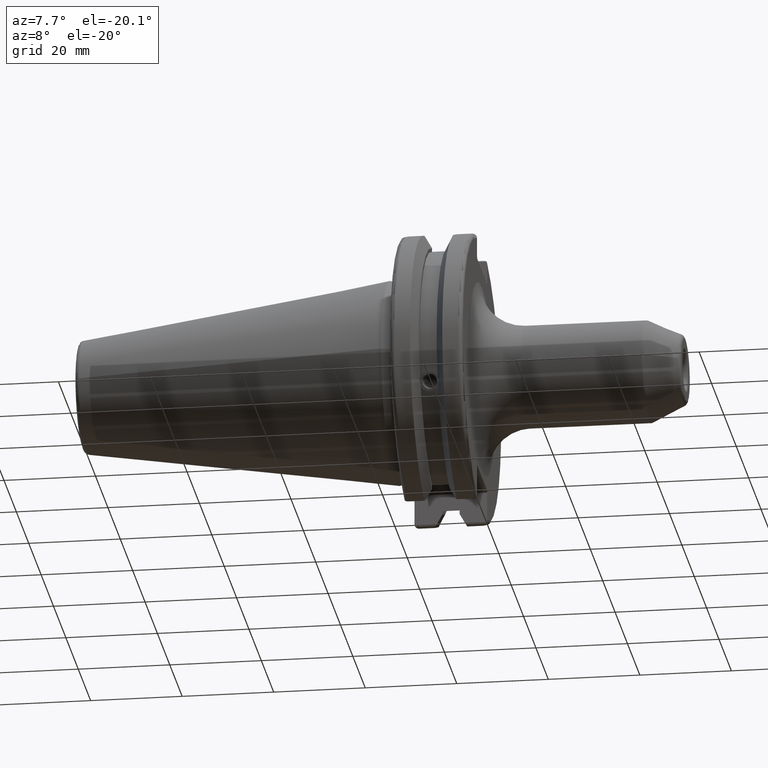
[diagram: clean part render]
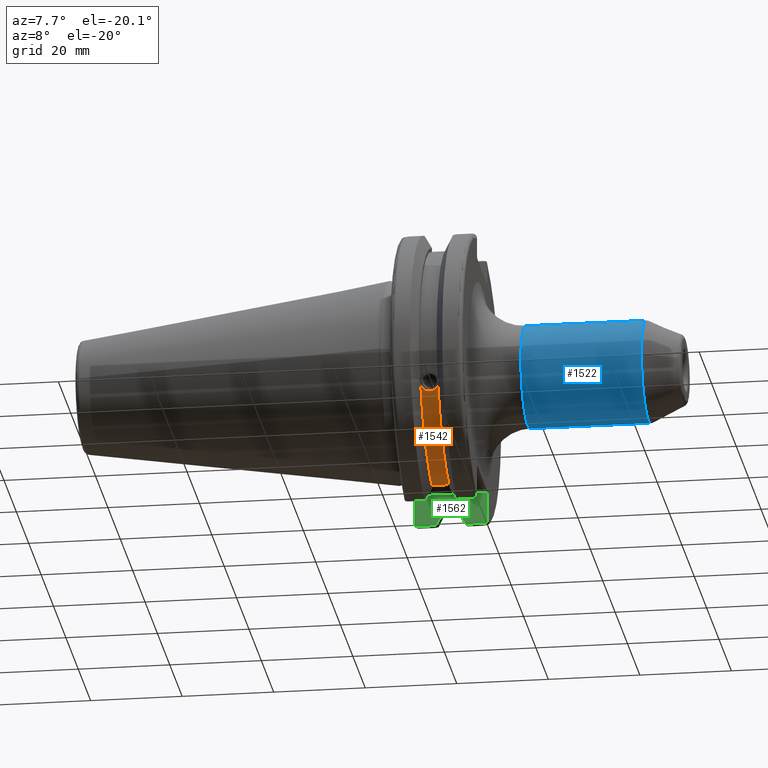
[diagram: same view with three faces highlighted in distinct colors, each labeled with its STEP entity id]
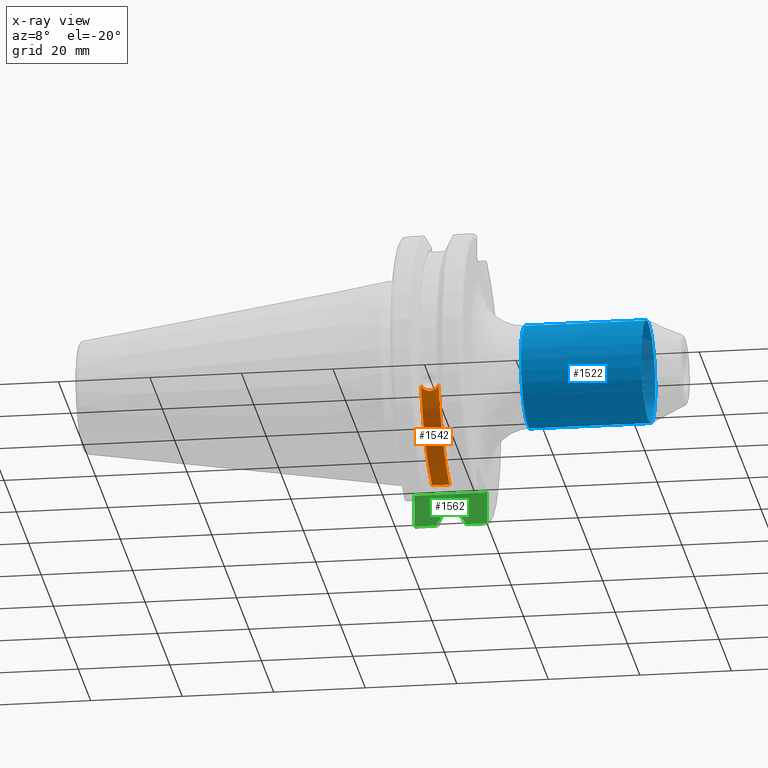
[diagram: x-ray of the same camera — body ghosted, the three highlighted faces saturated]
A machine part, auxiliary view with three faces highlighted in distinct colors.
The next image is the same camera in x-ray (body ghosted, the three faces saturated) — at least one of them is partly hidden behind the body in this view.
Their STEP definitions:

[orange] entity #1542 — the highlighted cylindrical surface (partial cylindrical patch) has radius 28.15 mm, axis along (1, 0, 0).
#74=B_SPLINE_CURVE_WITH_KNOTS('',3,(#2594,#2595,#2596,#2597,#2598,#2599,
#2600,#2601,#2602,#2603,#2604,#2605,#2606,#2607,#2608),.UNSPECIFIED.,.F.,
 .F.,(4,2,2,3,2,2,4),(-0.231446873660085,-0.158271583089134,-0.0791357915445672,
0.,0.0791357915445671,0.158271583089134,0.231446873660466),
 .UNSPECIFIED.);
#128=LINE('',#2666,#222);
#222=VECTOR('',#1985,10.);
#296=CYLINDRICAL_SURFACE('',#1696,28.15);
#390=FACE_OUTER_BOUND('',#485,.T.);
#485=EDGE_LOOP('',(#1182,#1183,#1184,#1185));
#588=CIRCLE('',#1695,28.15);
#589=CIRCLE('',#1697,28.15);
#685=VERTEX_POINT('',#2591);
#686=VERTEX_POINT('',#2593);
#699=VERTEX_POINT('',#2660);
#700=VERTEX_POINT('',#2664);
#861=EDGE_CURVE('',#686,#685,#74,.T.);
#879=EDGE_CURVE('',#686,#699,#588,.T.);
#881=EDGE_CURVE('',#685,#700,#589,.T.);
#882=EDGE_CURVE('',#700,#699,#128,.T.);
#1182=ORIENTED_EDGE('',*,*,#861,.T.);
#1183=ORIENTED_EDGE('',*,*,#881,.T.);
#1184=ORIENTED_EDGE('',*,*,#882,.T.);
#1185=ORIENTED_EDGE('',*,*,#879,.F.);
#1542=ADVANCED_FACE('',(#390),#296,.T.);
#1695=AXIS2_PLACEMENT_3D('',#2661,#1978,#1979);
#1696=AXIS2_PLACEMENT_3D('',#2663,#1981,#1982);
#1697=AXIS2_PLACEMENT_3D('',#2665,#1983,#1984);
#1978=DIRECTION('center_axis',(1.,0.,0.));
#1979=DIRECTION('ref_axis',(0.,0.,-1.));
#1981=DIRECTION('center_axis',(1.,0.,0.));
#1982=DIRECTION('ref_axis',(0.,1.,0.));
#1983=DIRECTION('center_axis',(1.,0.,0.));
#1984=DIRECTION('ref_axis',(0.,0.,-1.));
#1985=DIRECTION('',(1.,0.,0.));
#2591=CARTESIAN_POINT('',(9.2191,-26.1451788594704,-10.4332220529567));
#2593=CARTESIAN_POINT('',(13.0491,-26.1451788594704,-10.4332220529567));
#2594=CARTESIAN_POINT('Ctrl Pts',(13.0491,-26.1451788594704,-10.4332220529567));
#2595=CARTESIAN_POINT('Ctrl Pts',(12.9428694290343,-26.0576536126147,-10.6525563316815));
#2596=CARTESIAN_POINT('Ctrl Pts',(12.791379862294,-25.9751489313128,-10.8509873904882));
#2597=CARTESIAN_POINT('Ctrl Pts',(12.4326293734259,-25.8346412777187,-11.1816210830117));
#2598=CARTESIAN_POINT('Ctrl Pts',(12.1965549887012,-25.7695111693635,-11.3298867884858));
#2599=CARTESIAN_POINT('Ctrl Pts',(11.6791874573612,-25.6822868299377,-11.5262389251846));
#2600=CARTESIAN_POINT('Ctrl Pts',(11.3978859718152,-25.6603958057616,-11.5743935949859));
#2601=CARTESIAN_POINT('Ctrl Pts',(11.1341,-25.6603958057616,-11.5743935949859));
#2602=CARTESIAN_POINT('Ctrl Pts',(10.8703140281848,-25.6603958057616,-11.5743935949859));
#2603=CARTESIAN_POINT('Ctrl Pts',(10.5890125426388,-25.6822868299377,-11.5262389251846));
#2604=CARTESIAN_POINT('Ctrl Pts',(10.0716450112988,-25.7695111693635,-11.3298867884858));
#2605=CARTESIAN_POINT('Ctrl Pts',(9.83557062657411,-25.8346412777187,-11.1816210830117));
#2606=CARTESIAN_POINT('Ctrl Pts',(9.4768201377051,-25.9751489313131,-10.8509873904873));
#2607=CARTESIAN_POINT('Ctrl Pts',(9.32533057097183,-26.0576536126096,-10.6525563316942));
#2608=CARTESIAN_POINT('Ctrl Pts',(9.2191,-26.1451788594704,-10.4332220529567));
#2660=CARTESIAN_POINT('',(13.0491,-8.19,-26.932255754021));
#2661=CARTESIAN_POINT('Origin',(13.0491,0.,0.));
#2663=CARTESIAN_POINT('Origin',(11.1341,0.,0.));
#2664=CARTESIAN_POINT('',(9.2191,-8.19,-26.932255754021));
#2665=CARTESIAN_POINT('Origin',(9.2191,0.,0.));
#2666=CARTESIAN_POINT('',(11.1341,-8.19,-26.932255754021));

[blue] entity #1522 — the highlighted cylindrical surface (bore or boss wall) has radius 11.176 mm, axis along (1, 0, 0).
#65=B_SPLINE_CURVE_WITH_KNOTS('',3,(#2358,#2359,#2360,#2361,#2362,#2363,
#2364,#2365,#2366,#2367,#2368,#2369,#2370,#2371,#2372,#2373,#2374,#2375),
 .UNSPECIFIED.,.F.,.F.,(4,2,2,2,2,2,2,2,4),(0.656522759037643,0.824173855025994,
0.991824951014346,1.15243523454482,1.31304551807529,1.47365580160576,1.63426608513623,
1.80191718112458,1.96956827711293),.UNSPECIFIED.);
#66=B_SPLINE_CURVE_WITH_KNOTS('',3,(#2376,#2377,#2378,#2379,#2380,#2381,
#2382,#2383,#2384,#2385,#2386,#2387,#2388,#2389,#2390,#2391,#2392,#2393,
#2394),.UNSPECIFIED.,.F.,.F.,(4,2,2,2,3,2,2,2,4),(1.96956827711293,2.13721937310128,
2.30487046908963,2.4654807526201,2.62609103615057,2.78670131968104,2.94731160321151,
3.11496269919986,3.28261379518822),.UNSPECIFIED.);
#99=LINE('',#2352,#193);
#193=VECTOR('',#1856,11.176);
#286=CYLINDRICAL_SURFACE('',#1647,11.176);
#315=FACE_BOUND('',#460,.T.);
#370=FACE_OUTER_BOUND('',#459,.T.);
#459=EDGE_LOOP('',(#1060,#1061,#1062,#1063,#1064,#1065));
#460=EDGE_LOOP('',(#1066,#1067));
#567=CIRCLE('',#1645,11.176);
#568=CIRCLE('',#1646,11.176);
#569=CIRCLE('',#1648,11.176);
#570=CIRCLE('',#1649,11.176);
#643=VERTEX_POINT('',#2345);
#644=VERTEX_POINT('',#2347);
#645=VERTEX_POINT('',#2351);
#646=VERTEX_POINT('',#2353);
#647=VERTEX_POINT('',#2356);
#648=VERTEX_POINT('',#2357);
#806=EDGE_CURVE('',#643,#644,#567,.T.);
#807=EDGE_CURVE('',#644,#643,#568,.T.);
#808=EDGE_CURVE('',#644,#645,#99,.T.);
#809=EDGE_CURVE('',#646,#645,#569,.T.);
#810=EDGE_CURVE('',#645,#646,#570,.T.);
#811=EDGE_CURVE('',#647,#648,#65,.T.);
#812=EDGE_CURVE('',#648,#647,#66,.T.);
#1060=ORIENTED_EDGE('',*,*,#807,.F.);
#1061=ORIENTED_EDGE('',*,*,#808,.T.);
#1062=ORIENTED_EDGE('',*,*,#809,.F.);
#1063=ORIENTED_EDGE('',*,*,#810,.F.);
#1064=ORIENTED_EDGE('',*,*,#808,.F.);
#1065=ORIENTED_EDGE('',*,*,#806,.F.);
#1066=ORIENTED_EDGE('',*,*,#811,.T.);
#1067=ORIENTED_EDGE('',*,*,#812,.T.);
#1522=ADVANCED_FACE('',(#370,#315),#286,.T.);
#1645=AXIS2_PLACEMENT_3D('',#2348,#1850,#1851);
#1646=AXIS2_PLACEMENT_3D('',#2349,#1852,#1853);
#1647=AXIS2_PLACEMENT_3D('',#2350,#1854,#1855);
#1648=AXIS2_PLACEMENT_3D('',#2354,#1857,#1858);
#1649=AXIS2_PLACEMENT_3D('',#2355,#1859,#1860);
#1850=DIRECTION('center_axis',(1.,0.,0.));
#1851=DIRECTION('ref_axis',(0.,-1.,1.83697019872103E-16));
#1852=DIRECTION('center_axis',(1.,0.,0.));
#1853=DIRECTION('ref_axis',(0.,-1.,1.83697019872103E-16));
#1854=DIRECTION('center_axis',(1.,0.,0.));
#1855=DIRECTION('ref_axis',(0.,1.,0.));
#1856=DIRECTION('',(-1.,0.,0.));
#1857=DIRECTION('center_axis',(-1.,0.,0.));
#1858=DIRECTION('ref_axis',(0.,-1.,-1.22464679914735E-16));
#1859=DIRECTION('center_axis',(-1.,0.,0.));
#1860=DIRECTION('ref_axis',(0.,-1.,-1.22464679914735E-16));
#2345=CARTESIAN_POINT('',(55.3950978975639,-1.36866526272708E-15,11.176));
#2347=CARTESIAN_POINT('',(55.3950978975639,-11.176,-1.36866526272708E-15));
#2348=CARTESIAN_POINT('Origin',(55.3950978975639,0.,0.));
#2349=CARTESIAN_POINT('Origin',(55.3950978975639,0.,0.));
#2350=CARTESIAN_POINT('Origin',(37.3333962801034,0.,0.));
#2351=CARTESIAN_POINT('',(29.05,-11.176,-1.36866526272708E-15));
#2352=CARTESIAN_POINT('',(37.3333962801034,-11.176,-1.36866526272708E-15));
#2353=CARTESIAN_POINT('',(29.05,-1.36866526272708E-15,-11.176));
#2354=CARTESIAN_POINT('Origin',(29.05,0.,0.));
#2355=CARTESIAN_POINT('Origin',(29.05,0.,0.));
#2356=CARTESIAN_POINT('',(52.175,11.176,0.));
#2357=CARTESIAN_POINT('',(42.825,11.176,0.));
#2358=CARTESIAN_POINT('Ctrl Pts',(52.175,11.176,-5.55111512312578E-16));
#2359=CARTESIAN_POINT('Ctrl Pts',(52.175,11.176,0.558836986627837));
#2360=CARTESIAN_POINT('Ctrl Pts',(52.024690215704,11.1301749495032,1.13427339393077));
#2361=CARTESIAN_POINT('Ctrl Pts',(51.4691002398714,10.9790020469182,2.15148322227343));
#2362=CARTESIAN_POINT('Ctrl Pts',(51.0649184765754,10.8762679996926,2.59424283061505));
#2363=CARTESIAN_POINT('Ctrl Pts',(50.2070240971641,10.6982660287269,3.24969399985498));
#2364=CARTESIAN_POINT('Ctrl Pts',(49.6975453073145,10.6096289676855,3.51758919340348));
#2365=CARTESIAN_POINT('Ctrl Pts',(48.6118232448661,10.486538421115,3.86913034261304));
#2366=CARTESIAN_POINT('Ctrl Pts',(48.0353676117682,10.4536755323607,3.95267553236071));
#2367=CARTESIAN_POINT('Ctrl Pts',(46.9646323882318,10.4536755323607,3.95267553236071));
#2368=CARTESIAN_POINT('Ctrl Pts',(46.3881767551338,10.486538421115,3.86913034261304));
#2369=CARTESIAN_POINT('Ctrl Pts',(45.3024546926855,10.6096289676855,3.51758919340347));
#2370=CARTESIAN_POINT('Ctrl Pts',(44.7929759028359,10.6982660287269,3.24969399985498));
#2371=CARTESIAN_POINT('Ctrl Pts',(43.9350815234246,10.8762679996926,2.59424283061505));
#2372=CARTESIAN_POINT('Ctrl Pts',(43.5308997601286,10.9790020469182,2.15148322227344));
#2373=CARTESIAN_POINT('Ctrl Pts',(42.975309784296,11.1301749495032,1.13427339393077));
#2374=CARTESIAN_POINT('Ctrl Pts',(42.825,11.176,0.55883698662784));
#2375=CARTESIAN_POINT('Ctrl Pts',(42.825,11.176,2.4980018054066E-15));
#2376=CARTESIAN_POINT('Ctrl Pts',(42.825,11.176,6.24500451351651E-16));
#2377=CARTESIAN_POINT('Ctrl Pts',(42.825,11.176,-0.558836986627835));
#2378=CARTESIAN_POINT('Ctrl Pts',(42.975309784296,11.1301749495032,-1.13427339393076));
#2379=CARTESIAN_POINT('Ctrl Pts',(43.5308997601286,10.9790020469182,-2.15148322227343));
#2380=CARTESIAN_POINT('Ctrl Pts',(43.9350815234246,10.8762679996926,-2.59424283061505));
#2381=CARTESIAN_POINT('Ctrl Pts',(44.7929759028359,10.6982660287269,-3.24969399985498));
#2382=CARTESIAN_POINT('Ctrl Pts',(45.3024546926855,10.6096289676855,-3.51758919340347));
#2383=CARTESIAN_POINT('Ctrl Pts',(46.3881767551339,10.486538421115,-3.86913034261304));
#2384=CARTESIAN_POINT('Ctrl Pts',(46.9646323882318,10.4536755323607,-3.95267553236071));
#2385=CARTESIAN_POINT('Ctrl Pts',(47.5,10.4536755323607,-3.95267553236071));
#2386=CARTESIAN_POINT('Ctrl Pts',(48.0353676117682,10.4536755323607,-3.95267553236071));
#2387=CARTESIAN_POINT('Ctrl Pts',(48.6118232448661,10.486538421115,-3.86913034261304));
#2388=CARTESIAN_POINT('Ctrl Pts',(49.6975453073145,10.6096289676855,-3.51758919340348));
#2389=CARTESIAN_POINT('Ctrl Pts',(50.2070240971641,10.6982660287269,-3.24969399985498));
#2390=CARTESIAN_POINT('Ctrl Pts',(51.0649184765754,10.8762679996926,-2.59424283061505));
#2391=CARTESIAN_POINT('Ctrl Pts',(51.4691002398714,10.9790020469182,-2.15148322227344));
#2392=CARTESIAN_POINT('Ctrl Pts',(52.024690215704,11.1301749495032,-1.13427339393077));
#2393=CARTESIAN_POINT('Ctrl Pts',(52.175,11.176,-0.558836986627837));
#2394=CARTESIAN_POINT('Ctrl Pts',(52.175,11.176,5.55111512312578E-16));

[green] entity #1562 — the highlighted planar face has unit normal (-0, 1, 0).
#19=(
BOUNDED_CURVE()
B_SPLINE_CURVE(2,(#2776,#2777,#2778),.UNSPECIFIED.,.F.,.F.)
B_SPLINE_CURVE_WITH_KNOTS((3,3),(0.,0.276549142796136),.UNSPECIFIED.)
CURVE()
GEOMETRIC_REPRESENTATION_ITEM()
RATIONAL_B_SPLINE_CURVE((1.,1.00095203903316,1.00031614444813))
REPRESENTATION_ITEM('')
);
#24=(
BOUNDED_CURVE()
B_SPLINE_CURVE(2,(#2909,#2910,#2911),.UNSPECIFIED.,.F.,.F.)
B_SPLINE_CURVE_WITH_KNOTS((3,3),(0.0550586467393769,0.331607789535852),
 .UNSPECIFIED.)
CURVE()
GEOMETRIC_REPRESENTATION_ITEM()
RATIONAL_B_SPLINE_CURVE((1.00031614444922,1.00095203903643,1.))
REPRESENTATION_ITEM('')
);
#82=B_SPLINE_CURVE_WITH_KNOTS('',3,(#2866,#2867,#2868,#2869,#2870,#2871),
 .UNSPECIFIED.,.F.,.F.,(4,2,4),(0.452741154494497,0.491581665024871,0.505824174364157),
 .UNSPECIFIED.);
#85=B_SPLINE_CURVE_WITH_KNOTS('',3,(#2902,#2903,#2904,#2905,#2906,#2907),
 .UNSPECIFIED.,.F.,.F.,(4,2,4),(0.0977210450333169,0.111963554372601,0.150804064902975),
 .UNSPECIFIED.);
#109=LINE('',#2423,#203);
#138=LINE('',#2797,#232);
#139=LINE('',#2801,#233);
#140=LINE('',#2805,#234);
#149=LINE('',#2845,#243);
#155=LINE('',#2893,#249);
#157=LINE('',#2900,#251);
#158=LINE('',#2908,#252);
#203=VECTOR('',#1882,10.);
#232=VECTOR('',#2043,10.);
#233=VECTOR('',#2048,10.);
#234=VECTOR('',#2053,10.);
#243=VECTOR('',#2092,10.);
#249=VECTOR('',#2108,10.);
#251=VECTOR('',#2112,10.);
#252=VECTOR('',#2113,10.);
#341=PLANE('',#1746);
#410=FACE_OUTER_BOUND('',#510,.T.);
#510=EDGE_LOOP('',(#1297,#1298,#1299,#1300,#1301,#1302,#1303,#1304,#1305,
#1306,#1307,#1308));
#651=VERTEX_POINT('',#2401);
#661=VERTEX_POINT('',#2421);
#720=VERTEX_POINT('',#2773);
#721=VERTEX_POINT('',#2775);
#726=VERTEX_POINT('',#2795);
#727=VERTEX_POINT('',#2799);
#728=VERTEX_POINT('',#2803);
#743=VERTEX_POINT('',#2842);
#744=VERTEX_POINT('',#2844);
#750=VERTEX_POINT('',#2865);
#753=VERTEX_POINT('',#2892);
#755=VERTEX_POINT('',#2901);
#826=EDGE_CURVE('',#661,#651,#109,.T.);
#910=EDGE_CURVE('',#720,#721,#19,.T.);
#917=EDGE_CURVE('',#726,#720,#138,.T.);
#919=EDGE_CURVE('',#727,#726,#139,.T.);
#921=EDGE_CURVE('',#728,#727,#140,.T.);
#939=EDGE_CURVE('',#743,#744,#149,.T.);
#947=EDGE_CURVE('',#651,#750,#82,.T.);
#951=EDGE_CURVE('',#750,#753,#155,.T.);
#954=EDGE_CURVE('',#744,#661,#157,.T.);
#955=EDGE_CURVE('',#755,#743,#85,.T.);
#956=EDGE_CURVE('',#721,#755,#158,.T.);
#957=EDGE_CURVE('',#753,#728,#24,.T.);
#1297=ORIENTED_EDGE('',*,*,#947,.F.);
#1298=ORIENTED_EDGE('',*,*,#826,.F.);
#1299=ORIENTED_EDGE('',*,*,#954,.F.);
#1300=ORIENTED_EDGE('',*,*,#939,.F.);
#1301=ORIENTED_EDGE('',*,*,#955,.F.);
#1302=ORIENTED_EDGE('',*,*,#956,.F.);
#1303=ORIENTED_EDGE('',*,*,#910,.F.);
#1304=ORIENTED_EDGE('',*,*,#917,.F.);
#1305=ORIENTED_EDGE('',*,*,#919,.F.);
#1306=ORIENTED_EDGE('',*,*,#921,.F.);
#1307=ORIENTED_EDGE('',*,*,#957,.F.);
#1308=ORIENTED_EDGE('',*,*,#951,.F.);
#1562=ADVANCED_FACE('',(#410),#341,.F.);
#1746=AXIS2_PLACEMENT_3D('',#2899,#2110,#2111);
#1882=DIRECTION('',(0.,0.,-1.));
#2043=DIRECTION('',(0.,0.,-1.));
#2048=DIRECTION('',(-1.,0.,0.));
#2053=DIRECTION('',(0.,0.,1.));
#2092=DIRECTION('',(0.,0.,1.));
#2108=DIRECTION('',(-1.,-1.31581988103722E-16,0.));
#2110=DIRECTION('center_axis',(-1.31581988103722E-16,1.,0.));
#2111=DIRECTION('ref_axis',(1.,1.31581988103722E-16,0.));
#2112=DIRECTION('',(1.,1.31581988103722E-16,0.));
#2113=DIRECTION('',(-1.,-1.31581988103722E-16,0.));
#2401=CARTESIAN_POINT('',(19.05,8.19,-29.6392712461019));
#2421=CARTESIAN_POINT('',(19.05,8.19,-23.1));
#2423=CARTESIAN_POINT('',(19.05,8.19,-11.3));
#2773=CARTESIAN_POINT('',(9.2191,8.19,-27.7771386827498));
#2775=CARTESIAN_POINT('',(7.88668530351257,8.19,-30.1755016258903));
#2776=CARTESIAN_POINT('Ctrl Pts',(9.2191,8.19,-27.7771386827498));
#2777=CARTESIAN_POINT('Ctrl Pts',(8.58046356152393,8.19,-28.9303689539705));
#2778=CARTESIAN_POINT('Ctrl Pts',(7.88668530351257,8.19,-30.1755016258903));
#2795=CARTESIAN_POINT('',(9.2191,8.19,-26.932255754021));
#2797=CARTESIAN_POINT('',(9.2191,8.18999999999999,-11.3));
#2799=CARTESIAN_POINT('',(13.0491,8.19,-26.932255754021));
#2801=CARTESIAN_POINT('',(11.1341,8.19,-26.932255754021));
#2803=CARTESIAN_POINT('',(13.0491,8.19,-27.7771386827498));
#2805=CARTESIAN_POINT('',(13.0491,8.19,-11.3));
#2842=CARTESIAN_POINT('',(3.175,8.18999999999999,-29.6392712461019));
#2844=CARTESIAN_POINT('',(3.175,8.18999999999999,-23.1));
#2845=CARTESIAN_POINT('',(3.175,8.18999999999999,-11.3));
#2865=CARTESIAN_POINT('',(18.9058722749097,8.19,-30.1755016258903));
#2866=CARTESIAN_POINT('Ctrl Pts',(19.05,8.19,-29.6392712461019));
#2867=CARTESIAN_POINT('Ctrl Pts',(19.05,8.19,-29.7687396145364));
#2868=CARTESIAN_POINT('Ctrl Pts',(19.0204855670831,8.19,-29.9212724384851));
#2869=CARTESIAN_POINT('Ctrl Pts',(18.9539643471756,8.19,-30.0852355256475));
#2870=CARTESIAN_POINT('Ctrl Pts',(18.9318163728133,8.19,-30.131014531546));
#2871=CARTESIAN_POINT('Ctrl Pts',(18.9058722749097,8.19,-30.1755016258903));
#2892=CARTESIAN_POINT('',(14.3815146964874,8.19,-30.1755016258903));
#2893=CARTESIAN_POINT('',(16.8551333845378,8.19,-30.1755016258903));
#2899=CARTESIAN_POINT('Origin',(3.175,8.19,-22.6));
#2900=CARTESIAN_POINT('',(9.44125,8.19,-23.1));
#2901=CARTESIAN_POINT('',(3.31912772509028,8.19,-30.1755016258903));
#2902=CARTESIAN_POINT('Ctrl Pts',(3.31912772509028,8.19,-30.1755016258903));
#2903=CARTESIAN_POINT('Ctrl Pts',(3.29318362718666,8.19,-30.131014531546));
#2904=CARTESIAN_POINT('Ctrl Pts',(3.27103565282437,8.19,-30.0852355256475));
#2905=CARTESIAN_POINT('Ctrl Pts',(3.20451443291695,8.19,-29.9212724384851));
#2906=CARTESIAN_POINT('Ctrl Pts',(3.175,8.19,-29.7687396145364));
#2907=CARTESIAN_POINT('Ctrl Pts',(3.175,8.19,-29.6392712461019));
#2908=CARTESIAN_POINT('',(5.39146661546218,8.19,-30.1755016258903));
#2909=CARTESIAN_POINT('Ctrl Pts',(14.3815146964874,8.18999999999999,-30.1755016258903));
#2910=CARTESIAN_POINT('Ctrl Pts',(13.687736438474,8.19,-28.9303689539668));
#2911=CARTESIAN_POINT('Ctrl Pts',(13.0491,8.19,-27.7771386827498));